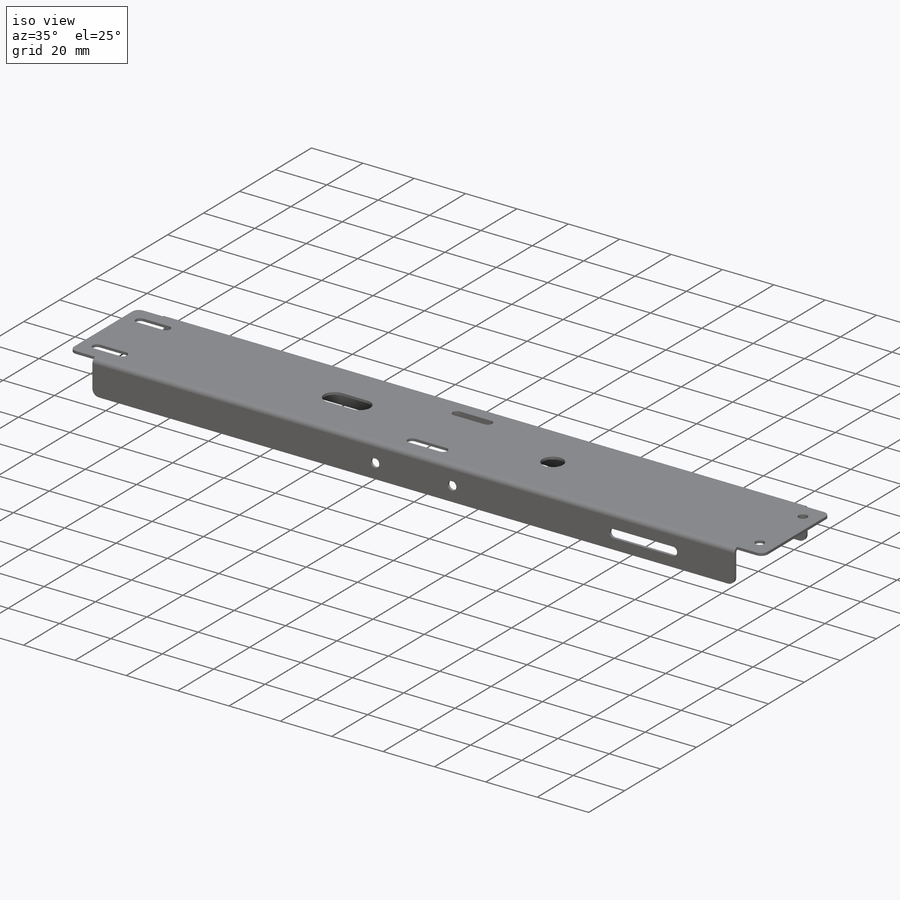
[diagram: iso view]
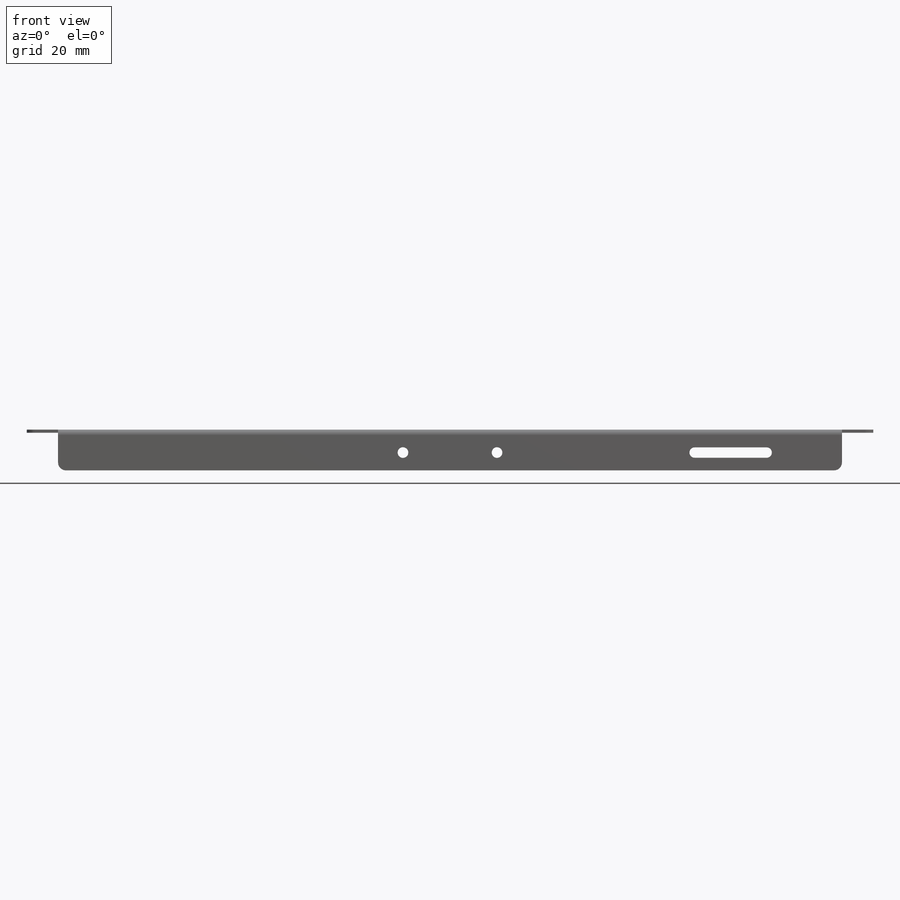
[diagram: front view]
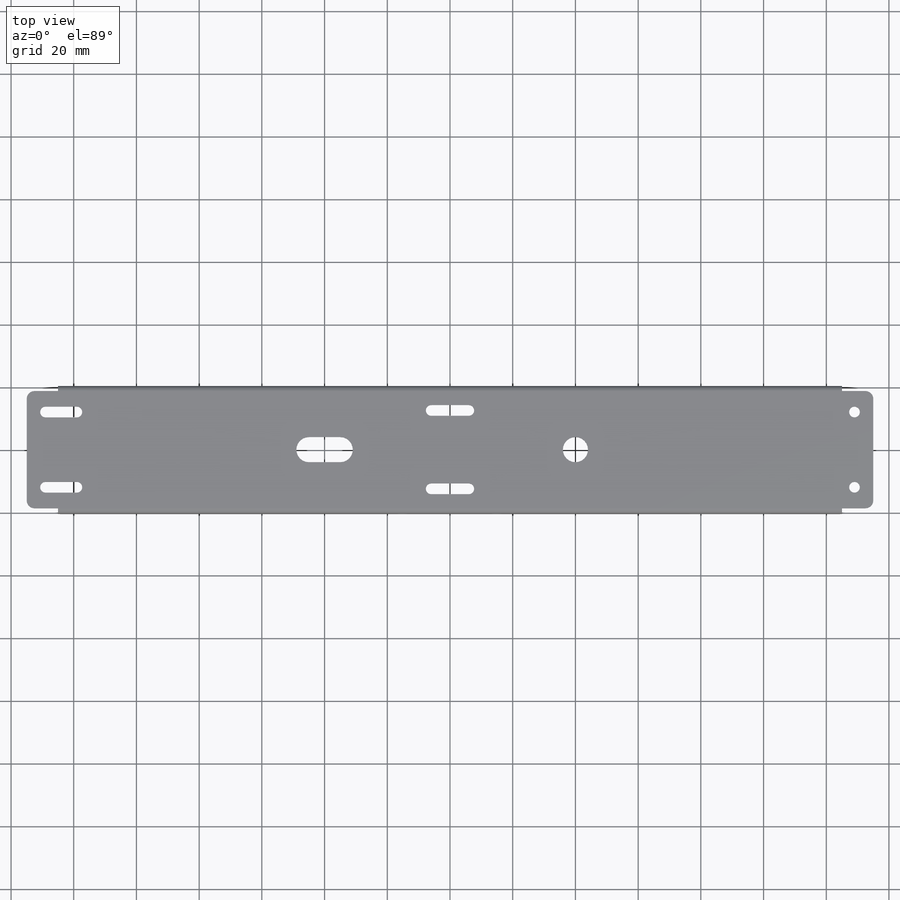
[diagram: top view]
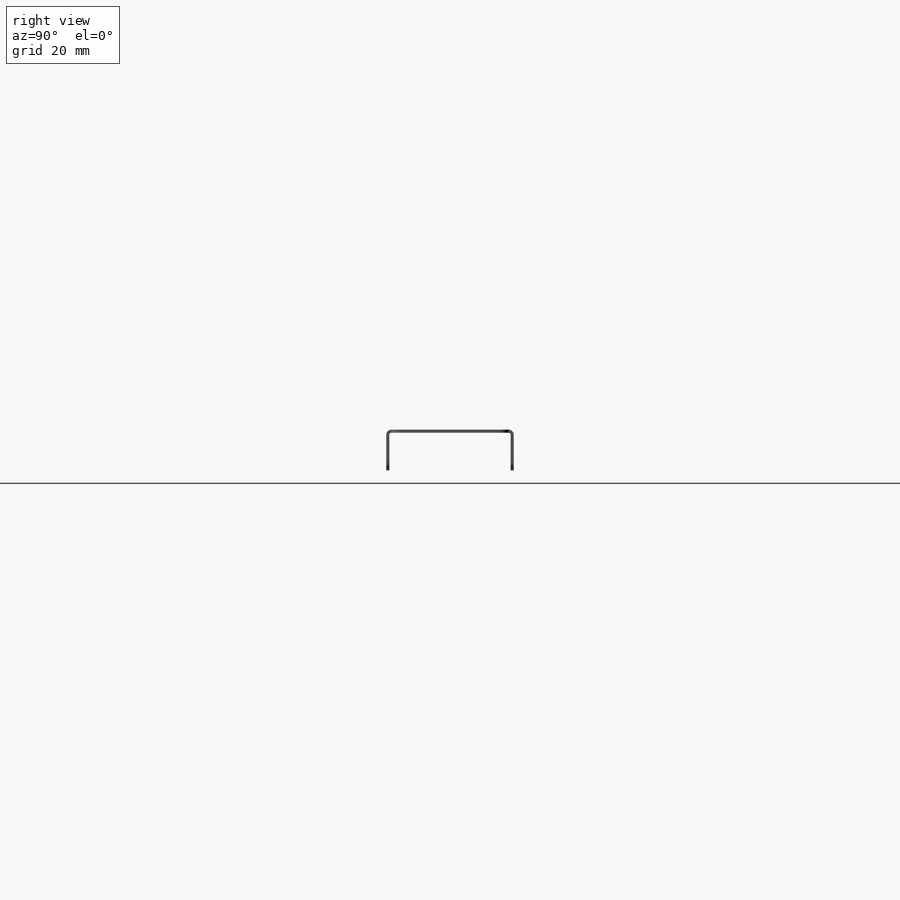
[diagram: right view]
SOLIDWORKS PART (.sldprt)
format: sldprt  version: not decoded by parser v0  size: 409,600 bytes
history: native  units: mm
features: sketch x12, cut_extrude x7, sheet_metal_op x2, material x1 + 2 further entries (+11 scaffold rows collapsed; 1 parser-record rows omitted)
feature tree (36):
  scaffold x11  (default folders/planes/origin — collapsed)
  material  "Plain Carbon Steel"
  sketch  "Sketch1"  dims[D1=37.4mm D2=270.0mm]
  sheet_metal_op  "Sheet-Metal1"
  sheet_metal_op  "Base-Flange1"
  sketch  "Sketch4"  dims[D1=8.0mm D2=80.0mm D3=80.0mm]
  cut_extrude  "Cut-Extrude1"  [1 undecoded]
  sketch  "Sketch6"  dims[D1=10.0mm]
  cut_extrude  "Cut-Extrude2"  [1 undecoded]
  sketch  "Sketch11"  dims[D1=250.0mm]
  sketch  "Sketch12"  dims[c1.D1=240.0mm c2.D1=0.635mm c2.D4=90.0deg c2.D5=1.0 c2.D8=0.5mm c2.D9=0.5mm c3.D1=0.635mm c3.D4=90.0deg c3.D5=2.0 c3.D8=0.5mm c3.D9=0.5mm c4.D1=1.0mm c4.D2=500.0mm c4.D3=0.0mm c4.D6=10.0mm c4.D7=12.0mm c4.D8=1.0mm]
  sketch  "Sketch13"  dims[D1=3.4mm D2=6.0mm D3=24.0mm]
  cut_extrude  "Cut-Extrude3"  [1 undecoded]
  sketch  "Sketch14"  dims[D1=3.3mm D2=23.0mm D3=49.5mm]
  cut_extrude  "Cut-Extrude4"  Depth=2.5mm
  sketch  "Sketch15"  dims[D1=3.4mm D2=12.0mm D3=25.0mm]
  cut_extrude  "Cut-Extrude5"  [1 undecoded]
  sketch  "Sketch16"  dims[D1=3.4mm D2=30.0mm]
  cut_extrude  "Cut-Extrude6"  [1 undecoded]
  sketch  "Sketch17"  dims[D1=10.0mm]
  cut_extrude  "Cut-Extrude7"  [1 undecoded]
  "Flat-Pattern1"
  sketch  "Bend-Lines1"
  sketch  "Bounding-Box1"
  "Flatten-<EdgeBend2>1"
  parser-record x1  (decoder bookkeeping rows leaked as tree rows — omitted from the tree; the rows remain in map.json)
decode coverage: 11 of 21 modeling features carry decoded parameters; 2 rows unclassified (native names shown)
note: 6 parameter values undecoded
summary: no parameter record found for 6 features
note: suppression state not decoded; provenance and decode notes live in map.json
